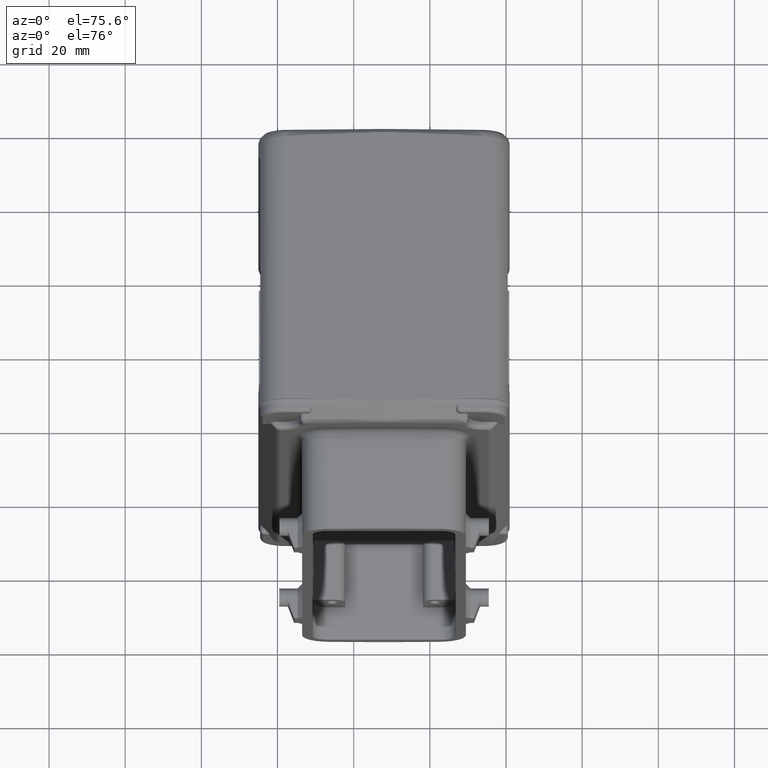
[diagram: clean part render]
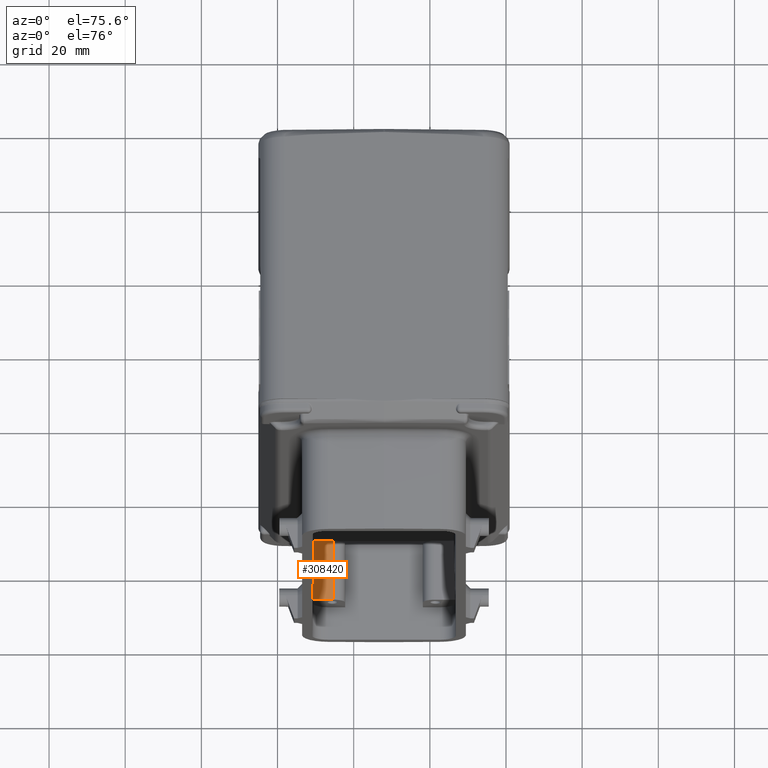
[diagram: same view with one face highlighted and labeled with its STEP entity id]
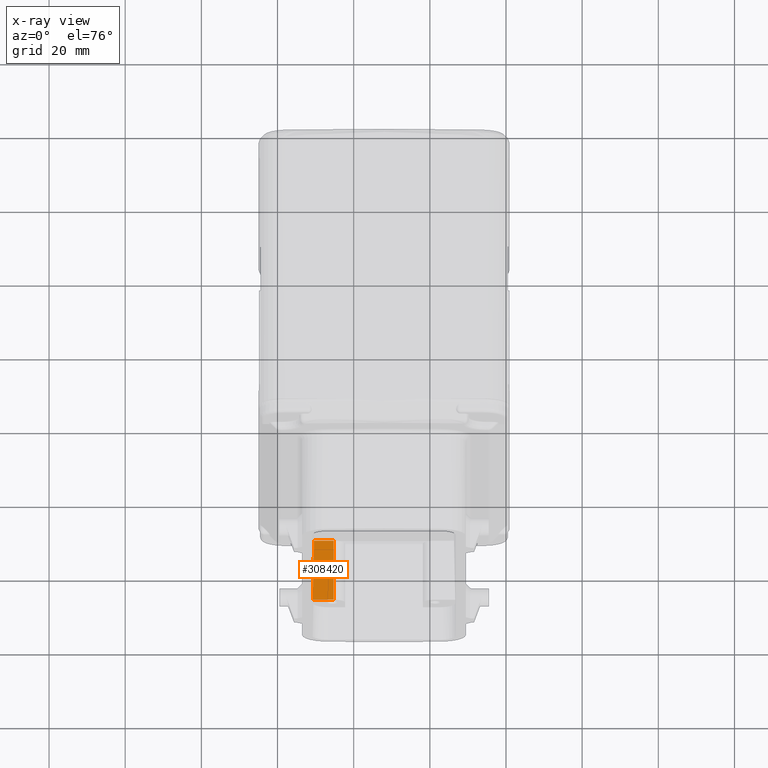
[diagram: x-ray of the same camera — body ghosted, the highlighted face saturated]
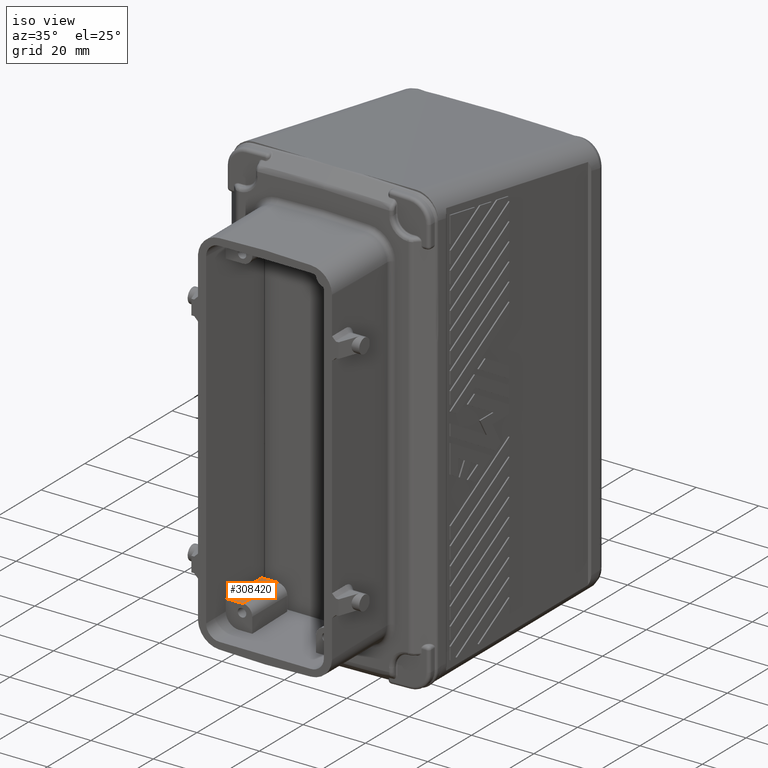
[diagram: same view with one face highlighted and labeled with its STEP entity id]
A machine part, auxiliary view. The second image highlights one B-rep face of the part: STEP entity #308420.
The next image is the same camera in x-ray: the body ghosted, the highlighted face saturated — about 0% of this face is hidden behind the body in this view.
A second angle (iso view) of the same face is appended — the face is thin or edge-on in the first view.
In plain terms, the highlighted planar face has unit normal (-0, -0, 1).
Its self-contained STEP definition (entity closure, byte-faithful):
#14780=CARTESIAN_POINT('',(33.4243132424393,44.5366080000222,
-53.2038627075968));
#14790=VERTEX_POINT('',#14780);
#14950=CARTESIAN_POINT('',(33.4243132424393,28.5366080000222,
-53.2038627075968));
#14960=VERTEX_POINT('',#14950);
#14990=CARTESIAN_POINT('',(33.4243132424393,-4.8693850293576E-32,
-53.2038627075968));
#15000=DIRECTION('',(-2.40356057059527E-31,1.,1.62312834311911E-32));
#15010=VECTOR('',#15000,1.);
#15020=LINE('',#14990,#15010);
#15030=EDGE_CURVE('',#14960,#14790,#15020,.T.);
#220040=CARTESIAN_POINT('',(37.0193132424393,28.5366080000222,
-53.2038627075968));
#220050=DIRECTION('',(-3.73559540482591E-15,-1.6231283431192E-32,1.));
#220060=DIRECTION('',(1.,2.40356057059527E-31,3.73559540482591E-15));
#220070=AXIS2_PLACEMENT_3D('',#220040,#220050,#220060);
#220080=PLANE('',#220070);
#264790=CARTESIAN_POINT('',(27.3225365722017,0.,-53.2038627075968));
#264800=DIRECTION('',(0.020942419883357,0.999780683474846,
7.97972798949331E-17));
#264810=VECTOR('',#264800,1.);
#264820=LINE('',#264790,#264810);
#264830=CARTESIAN_POINT('',(27.9202932969127,28.5366080000223,
-53.2038627075968));
#264840=VERTEX_POINT('',#264830);
#264850=CARTESIAN_POINT('',(28.2554455194673,44.5366080000222,
-53.2038627075968));
#264860=VERTEX_POINT('',#264850);
#264870=EDGE_CURVE('',#264840,#264860,#264820,.T.);
#305940=CARTESIAN_POINT('',(-0.0599999999851661,28.5366080000222,
-53.2038627075969));
#305950=DIRECTION('',(1.,0.,3.73559540482591E-15));
#305960=VECTOR('',#305950,1.);
#305970=LINE('',#305940,#305960);
#305980=EDGE_CURVE('',#264840,#14960,#305970,.T.);
#307360=CARTESIAN_POINT('',(0.,44.5366080000222,-53.2038627075969));
#307370=DIRECTION('',(-1.,2.77555756156273E-17,-3.73559540482591E-15));
#307380=VECTOR('',#307370,1.);
#307390=LINE('',#307360,#307380);
#307400=EDGE_CURVE('',#14790,#264860,#307390,.T.);
#308360=ORIENTED_EDGE('',*,*,#307400,.T.);
#308370=ORIENTED_EDGE('',*,*,#15030,.T.);
#308380=ORIENTED_EDGE('',*,*,#305980,.T.);
#308390=ORIENTED_EDGE('',*,*,#264870,.F.);
#308400=EDGE_LOOP('',(#308390,#308380,#308370,#308360));
#308410=FACE_OUTER_BOUND('',#308400,.T.);
#308420=ADVANCED_FACE('',(#308410),#220080,.T.);